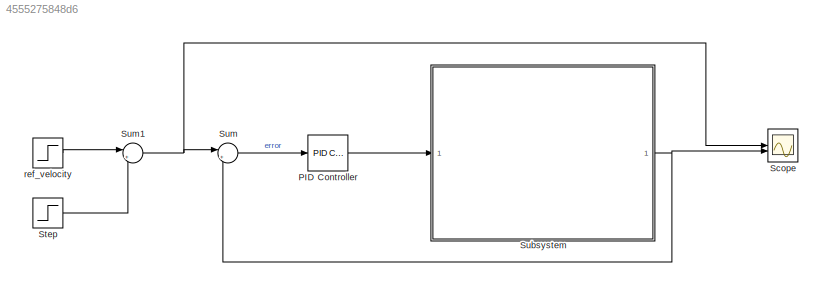
MODEL slx_4555275848d6
KIND model
CONFIG AbsTol = auto
CONFIG EnableMultiTasking = off
CONFIG FixedStep = auto
CONFIG MaxStep = auto
CONFIG MinStep = auto
CONFIG RelTol = 1e-3
CONFIG SampleTimeConstraint = Unconstrained
CONFIG SolverName = VariableStepAuto
CONFIG StartTime = 0.0
CONFIG StopTime = 100.0
BLOCK [Reference] PID Controller  REF=slpidlib/PID Controller
  LibrarySourceBlock = simulink/Continuous/PID Controller
  SourceBlock = slpidlib/PID Controller
  SourceType = PID 1dof
BLOCK [Scope] Scope
  Floating = off
  NumInputPorts = 2
  ScopeSpecificationString = Simulink.scopes.TimeScopeBlockCfg('CurrentConfiguration', extmgr.ConfigurationSet(extmgr.Configuration('Core','General UI',true),extmgr.Configuration('Core','Source UI',true),extmgr.Configuration('Sources','WiredSimulink',true),extmgr.Configuration('Visuals','Time Domain',true,'SerializedDisplays',{struct('MinYLimReal','-4.00529','MaxYLimReal','36.04759','YLabelReal','','MinYLimMag','0.00000','Max...<+1460ch>
BLOCK [Step] Step
  After = -25
  SampleTime = 0
  Time = 50
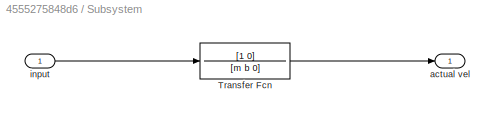
BLOCK [SubSystem] Subsystem
BLOCK [TransferFcn] Subsystem/Transfer Fcn
  Denominator = [m b 0]
  Numerator = [1 0]
BLOCK [Outport] Subsystem/actual vel
BLOCK [Inport] Subsystem/input
BLOCK [Sum] Sum
  Inputs = |+-
BLOCK [Sum] Sum1
  Inputs = |++
BLOCK [Step] ref_velocity
  After = 30
  SampleTime = 0
  Time = 0
LINE PID Controller:1 -> Subsystem:1
LINE Step:1 -> Sum1:2
LINE Subsystem/Transfer Fcn:1 -> Subsystem/actual vel:1
LINE Subsystem/input:1 -> Subsystem/Transfer Fcn:1
NET Subsystem:1 -> Scope:2, Sum:2
NET Sum1:1 -> Scope:1, Sum:1
LINE Sum:1 -> PID Controller:1
LINE ref_velocity:1 -> Sum1:1
note: NET lines group one-source signal fan-out (src -> all destinations, sorted); 1:1 wires keep LINE
